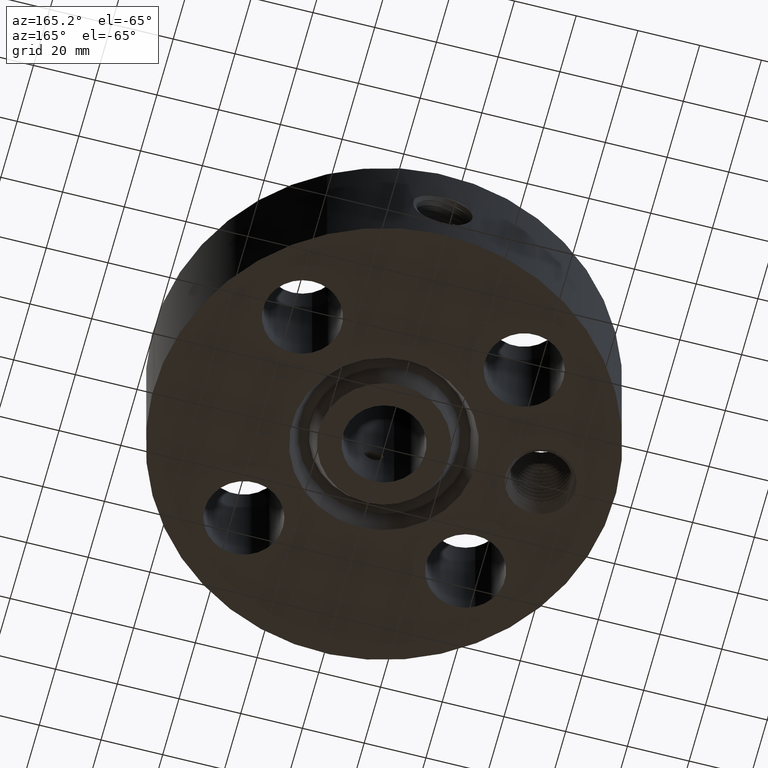
[diagram: clean part render]
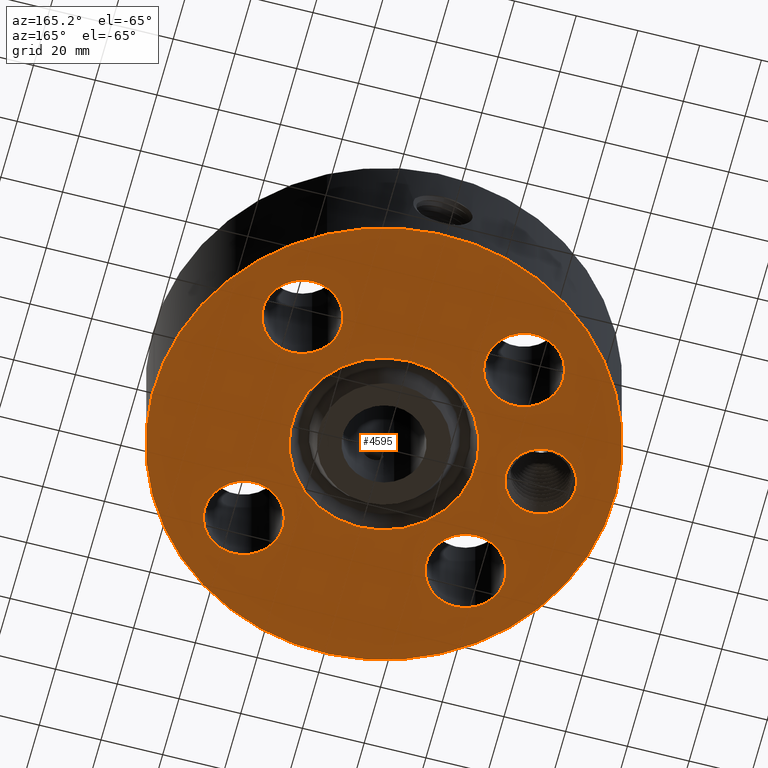
[diagram: same view with one face highlighted and labeled with its STEP entity id]
A machine part, auxiliary view. The second image highlights one B-rep face of the part: STEP entity #4595.
In plain terms, the highlighted planar face has unit normal (0, 0, -1).
Its self-contained STEP definition (entity closure, byte-faithful):
#598=AXIS2_PLACEMENT_3D('Plane Axis2P3D',#595,#596,#597) ;
#3368=AXIS2_PLACEMENT_3D('Circle Axis2P3D',#3366,#3367,$) ;
#3394=AXIS2_PLACEMENT_3D('Circle Axis2P3D',#3392,#3393,$) ;
#3667=AXIS2_PLACEMENT_3D('Circle Axis2P3D',#3665,#3666,$) ;
#3811=AXIS2_PLACEMENT_3D('Circle Axis2P3D',#3809,#3810,$) ;
#4100=AXIS2_PLACEMENT_3D('Circle Axis2P3D',#4098,#4099,$) ;
#4119=AXIS2_PLACEMENT_3D('Circle Axis2P3D',#4117,#4118,$) ;
#4143=AXIS2_PLACEMENT_3D('Circle Axis2P3D',#4141,#4142,$) ;
#4162=AXIS2_PLACEMENT_3D('Circle Axis2P3D',#4160,#4161,$) ;
#4186=AXIS2_PLACEMENT_3D('Circle Axis2P3D',#4184,#4185,$) ;
#4205=AXIS2_PLACEMENT_3D('Circle Axis2P3D',#4203,#4204,$) ;
#4229=AXIS2_PLACEMENT_3D('Circle Axis2P3D',#4227,#4228,$) ;
#4248=AXIS2_PLACEMENT_3D('Circle Axis2P3D',#4246,#4247,$) ;
#4559=AXIS2_PLACEMENT_3D('Circle Axis2P3D',#4557,#4558,$) ;
#4568=AXIS2_PLACEMENT_3D('Circle Axis2P3D',#4566,#4567,$) ;
#595=CARTESIAN_POINT('Axis2P3D Location',(0.,0.524500000002,0.)) ;
#3366=CARTESIAN_POINT('Axis2P3D Location',(0.,0.,0.)) ;
#3370=CARTESIAN_POINT('Vertex',(-0.561886731246,1.02852676254,0.)) ;
#3372=CARTESIAN_POINT('Vertex',(0.561886731246,-1.02852676254,0.)) ;
#3392=CARTESIAN_POINT('Axis2P3D Location',(0.,0.,0.)) ;
#3665=CARTESIAN_POINT('Axis2P3D Location',(0.,0.,2.79741234551E-016)) ;
#3669=CARTESIAN_POINT('Vertex',(-1.4095110835,-2.58009273197,2.79741234551E-016)) ;
#3671=CARTESIAN_POINT('Vertex',(1.4095110835,2.58009273197,2.79741234551E-016)) ;
#3809=CARTESIAN_POINT('Axis2P3D Location',(0.,0.,2.79741234551E-016)) ;
#4095=CARTESIAN_POINT('Vertex',(1.85300484333,-1.65392633168,0.)) ;
#4098=CARTESIAN_POINT('Axis2P3D Location',(1.41421356238,-1.41421356238,0.)) ;
#4102=CARTESIAN_POINT('Vertex',(0.975422281432,-1.17450079308,0.)) ;
#4117=CARTESIAN_POINT('Axis2P3D Location',(1.41421356238,-1.41421356238,0.)) ;
#4138=CARTESIAN_POINT('Vertex',(-1.17450079308,-0.975422281432,0.)) ;
#4141=CARTESIAN_POINT('Axis2P3D Location',(-1.41421356238,-1.41421356238,0.)) ;
#4145=CARTESIAN_POINT('Vertex',(-1.65392633168,-1.85300484333,0.)) ;
#4160=CARTESIAN_POINT('Axis2P3D Location',(-1.41421356238,-1.41421356238,0.)) ;
#4181=CARTESIAN_POINT('Vertex',(-0.975422281432,1.17450079308,0.)) ;
#4184=CARTESIAN_POINT('Axis2P3D Location',(-1.41421356238,1.41421356238,0.)) ;
#4188=CARTESIAN_POINT('Vertex',(-1.85300484333,1.65392633168,0.)) ;
#4203=CARTESIAN_POINT('Axis2P3D Location',(-1.41421356238,1.41421356238,0.)) ;
#4224=CARTESIAN_POINT('Vertex',(1.17450079308,0.975422281432,0.)) ;
#4227=CARTESIAN_POINT('Axis2P3D Location',(1.41421356238,1.41421356238,0.)) ;
#4231=CARTESIAN_POINT('Vertex',(1.65392633168,1.85300484333,0.)) ;
#4246=CARTESIAN_POINT('Axis2P3D Location',(1.41421356238,1.41421356238,0.)) ;
#4557=CARTESIAN_POINT('Axis2P3D Location',(-2.00000000001,6.99353086378E-017,0.)) ;
#4561=CARTESIAN_POINT('Vertex',(-1.6114064416,-0.212289628495,0.)) ;
#4563=CARTESIAN_POINT('Vertex',(-2.38859355841,0.212289628495,0.)) ;
#4566=CARTESIAN_POINT('Axis2P3D Location',(-2.00000000001,6.99353086378E-017,0.)) ;
#596=DIRECTION('Axis2P3D Direction',(0.,0.,-0.0393700787402)) ;
#597=DIRECTION('Axis2P3D XDirection',(0.0393700787402,0.,0.)) ;
#3367=DIRECTION('Axis2P3D Direction',(0.,0.,-0.0393700787402)) ;
#3393=DIRECTION('Axis2P3D Direction',(0.,0.,-0.0393700787402)) ;
#3666=DIRECTION('Axis2P3D Direction',(0.,0.,-0.0393700787402)) ;
#3810=DIRECTION('Axis2P3D Direction',(0.,0.,-0.0393700787402)) ;
#4099=DIRECTION('Axis2P3D Direction',(0.,-0.,-0.0393700787402)) ;
#4118=DIRECTION('Axis2P3D Direction',(0.,-0.,-0.0393700787402)) ;
#4142=DIRECTION('Axis2P3D Direction',(0.,-0.,-0.0393700787402)) ;
#4161=DIRECTION('Axis2P3D Direction',(0.,-0.,-0.0393700787402)) ;
#4185=DIRECTION('Axis2P3D Direction',(-0.,0.,-0.0393700787402)) ;
#4204=DIRECTION('Axis2P3D Direction',(-0.,0.,-0.0393700787402)) ;
#4228=DIRECTION('Axis2P3D Direction',(0.,0.,-0.0393700787402)) ;
#4247=DIRECTION('Axis2P3D Direction',(0.,0.,-0.0393700787402)) ;
#4558=DIRECTION('Axis2P3D Direction',(0.,0.,-0.0393700787402)) ;
#4567=DIRECTION('Axis2P3D Direction',(0.,0.,-0.0393700787402)) ;
#4554=ORIENTED_EDGE('',*,*,#3673,.T.) ;
#4555=ORIENTED_EDGE('',*,*,#3813,.T.) ;
#4572=ORIENTED_EDGE('',*,*,#4565,.F.) ;
#4573=ORIENTED_EDGE('',*,*,#4570,.F.) ;
#4576=ORIENTED_EDGE('',*,*,#4104,.F.) ;
#4577=ORIENTED_EDGE('',*,*,#4121,.F.) ;
#4580=ORIENTED_EDGE('',*,*,#4147,.F.) ;
#4581=ORIENTED_EDGE('',*,*,#4164,.F.) ;
#4584=ORIENTED_EDGE('',*,*,#4190,.F.) ;
#4585=ORIENTED_EDGE('',*,*,#4207,.F.) ;
#4588=ORIENTED_EDGE('',*,*,#4233,.F.) ;
#4589=ORIENTED_EDGE('',*,*,#4250,.F.) ;
#4592=ORIENTED_EDGE('',*,*,#3396,.F.) ;
#4593=ORIENTED_EDGE('',*,*,#3374,.F.) ;
#4574=FACE_BOUND('',#4571,.T.) ;
#4578=FACE_BOUND('',#4575,.T.) ;
#4582=FACE_BOUND('',#4579,.T.) ;
#4586=FACE_BOUND('',#4583,.T.) ;
#4590=FACE_BOUND('',#4587,.T.) ;
#4594=FACE_BOUND('',#4591,.T.) ;
#4595=ADVANCED_FACE('PartBody',(#4556,#4574,#4578,#4582,#4586,#4590,#4594),#599,.T.) ;
#3369=CIRCLE('generated circle',#3368,1.172) ;
#3395=CIRCLE('generated circle',#3394,1.172) ;
#3668=CIRCLE('generated circle',#3667,2.94000000001) ;
#3812=CIRCLE('generated circle',#3811,2.94000000001) ;
#4101=CIRCLE('generated circle',#4100,0.500000000002) ;
#4120=CIRCLE('generated circle',#4119,0.500000000002) ;
#4144=CIRCLE('generated circle',#4143,0.500000000002) ;
#4163=CIRCLE('generated circle',#4162,0.500000000002) ;
#4187=CIRCLE('generated circle',#4186,0.500000000002) ;
#4206=CIRCLE('generated circle',#4205,0.500000000002) ;
#4230=CIRCLE('generated circle',#4229,0.500000000002) ;
#4249=CIRCLE('generated circle',#4248,0.500000000002) ;
#4560=CIRCLE('generated circle',#4559,0.442800000002) ;
#4569=CIRCLE('generated circle',#4568,0.442800000002) ;
#3374=EDGE_CURVE('',#3371,#3373,#3369,.T.) ;
#3396=EDGE_CURVE('',#3373,#3371,#3395,.T.) ;
#3673=EDGE_CURVE('',#3670,#3672,#3668,.T.) ;
#3813=EDGE_CURVE('',#3672,#3670,#3812,.T.) ;
#4104=EDGE_CURVE('',#4096,#4103,#4101,.T.) ;
#4121=EDGE_CURVE('',#4103,#4096,#4120,.T.) ;
#4147=EDGE_CURVE('',#4139,#4146,#4144,.T.) ;
#4164=EDGE_CURVE('',#4146,#4139,#4163,.T.) ;
#4190=EDGE_CURVE('',#4182,#4189,#4187,.T.) ;
#4207=EDGE_CURVE('',#4189,#4182,#4206,.T.) ;
#4233=EDGE_CURVE('',#4225,#4232,#4230,.T.) ;
#4250=EDGE_CURVE('',#4232,#4225,#4249,.T.) ;
#4565=EDGE_CURVE('',#4562,#4564,#4560,.T.) ;
#4570=EDGE_CURVE('',#4564,#4562,#4569,.T.) ;
#4553=EDGE_LOOP('',(#4554,#4555)) ;
#4571=EDGE_LOOP('',(#4572,#4573)) ;
#4575=EDGE_LOOP('',(#4576,#4577)) ;
#4579=EDGE_LOOP('',(#4580,#4581)) ;
#4583=EDGE_LOOP('',(#4584,#4585)) ;
#4587=EDGE_LOOP('',(#4588,#4589)) ;
#4591=EDGE_LOOP('',(#4592,#4593)) ;
#4556=FACE_OUTER_BOUND('',#4553,.T.) ;
#599=PLANE('',#598) ;
#3371=VERTEX_POINT('',#3370) ;
#3373=VERTEX_POINT('',#3372) ;
#3670=VERTEX_POINT('',#3669) ;
#3672=VERTEX_POINT('',#3671) ;
#4096=VERTEX_POINT('',#4095) ;
#4103=VERTEX_POINT('',#4102) ;
#4139=VERTEX_POINT('',#4138) ;
#4146=VERTEX_POINT('',#4145) ;
#4182=VERTEX_POINT('',#4181) ;
#4189=VERTEX_POINT('',#4188) ;
#4225=VERTEX_POINT('',#4224) ;
#4232=VERTEX_POINT('',#4231) ;
#4562=VERTEX_POINT('',#4561) ;
#4564=VERTEX_POINT('',#4563) ;